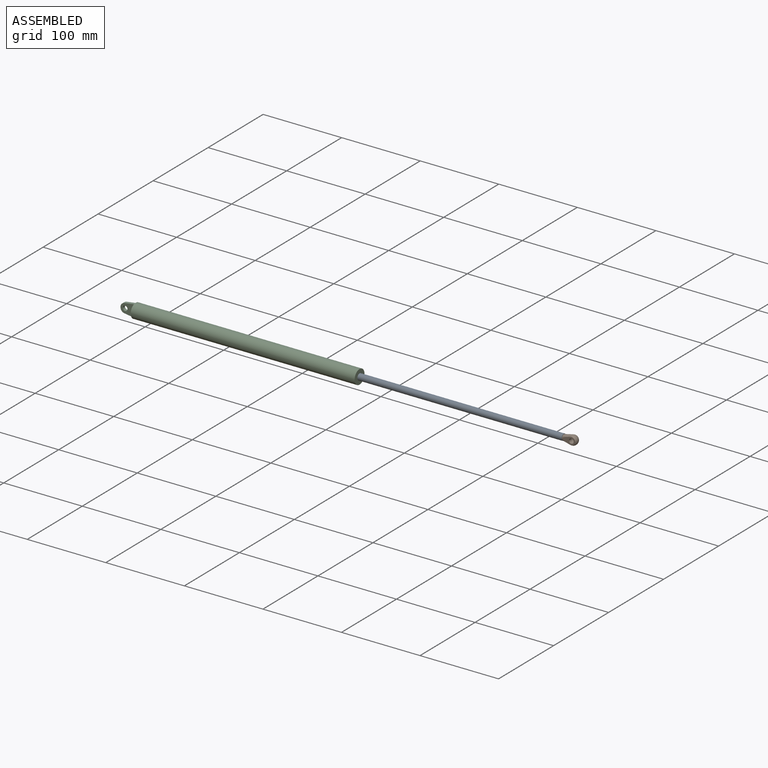
[diagram: assembled view]
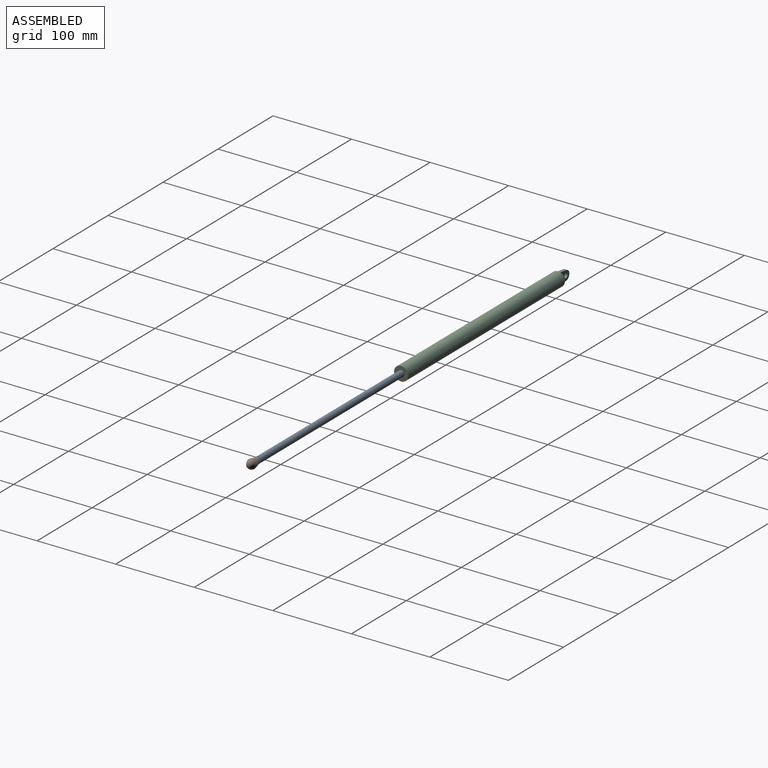
[diagram: assembled view, second angle]
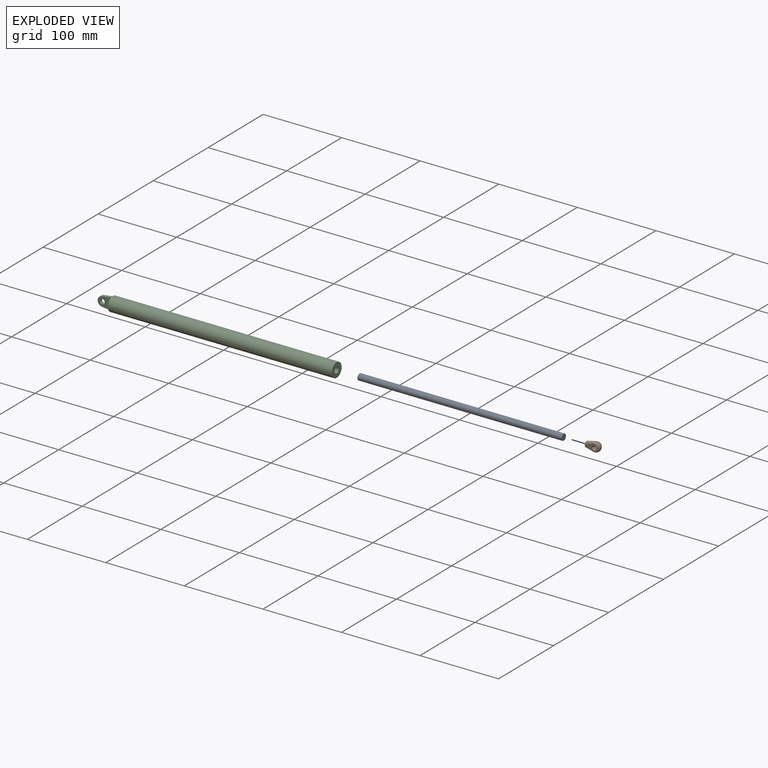
[diagram: exploded view]
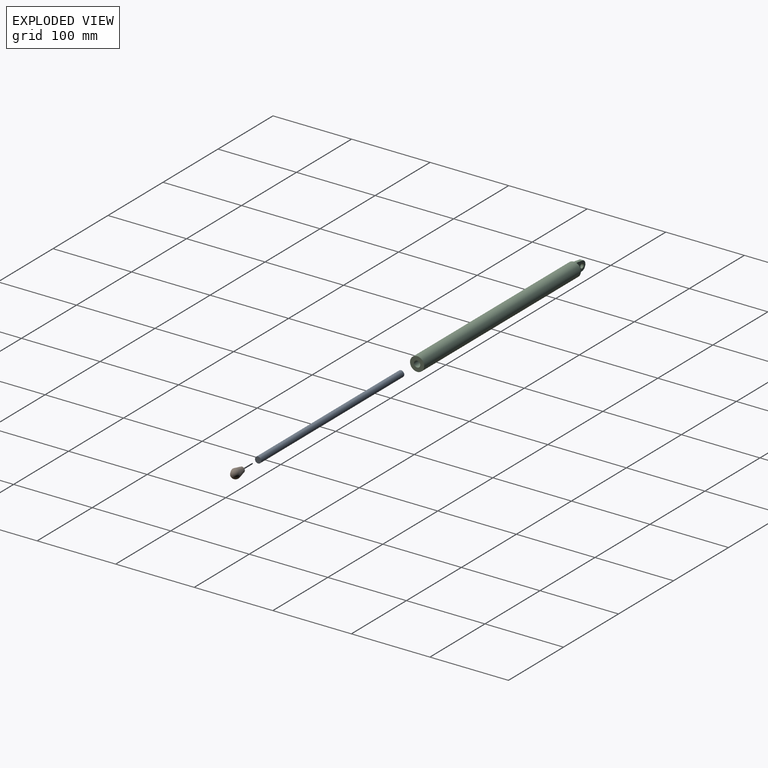
[diagram: exploded view, second angle]
ASSEMBLY  parts=3 mates=2
PART A: 3 faces, bbox 260x8x8 mm
  f0: cylinder r=4mm len=260mm, axis (-1,0,0), area 6534.5mm2, adj f1,f2
  f1: plane 8x8mm, normal (1,0,0), area 50.3mm2, adj f0
  f2: plane 8x8mm, normal (-1,0,0), area 50.3mm2, adj f0
PART B: 6 faces, bbox 12.2x12.2x18.2 mm
  f0: plane 7x7mm, normal (0,0,-1), area 38.5mm2, adj f1
  f1: cone r=3.5mm half-angle=12.4deg, axis (0,0,1), area 250.4mm2, adj f0,f2,f3
  f2: sphere r=6mm, area 213.3mm2, adj f1,f3
  f3: plane 17.08x9.95mm, normal (1,0,0), area 85mm2, adj f1,f2,f4
  f4: cylinder r=3mm len=8mm, axis (1,0,0), area 150.8mm2, adj f3,f5
  f5: plane 6x6mm, normal (1,0,0), area 28.3mm2, adj f4
PART C: 11 faces, bbox 303x18x18 mm
  f0: cylinder r=4mm len=280mm, axis (-1,0,0), area 7037.2mm2, adj f2,f3
  f1: cylinder r=9mm len=285mm, axis (-1,0,0), area 16116.4mm2, adj f2,f4
  f2: plane 18x18mm, normal (1,0,0), area 204.2mm2, adj f0,f1
  f3: plane 8x8mm, normal (1,0,0), area 50.3mm2, adj f0
  f4: plane 18x18mm, normal (-1,0,0), area 192.3mm2, adj f1,f6,f8,f9,f10
  f5: cylinder r=6mm len=11.88mm, axis (0,-1,0), area 68.6mm2, adj f6,f8,f9,f10
  f6: plane 12.85x4mm, normal (-0.14,0,0.99), area 51.9mm2, adj f4,f5,f9,f10
  f7: cylinder r=3mm len=6mm, axis (0,-1,0), area 75.4mm2, adj f9,f10
  f8: plane 12.85x4mm, normal (-0.14,0,-0.99), area 51.9mm2, adj f4,f5,f9,f10
  f9: plane 18x15.55mm, normal (0,1,0), area 194.3mm2, adj f4,f5,f6,f7,f8
  f10: plane 18x15.55mm, normal (0,-1,0), area 194.3mm2, adj f4,f5,f6,f7,f8
PLACE A t=(175.62,-3.81,-26.6)mm
PLACE B rot(axis=(-0.58,0.58,-0.58),120deg) t=(435.62,-3.81,-26.6)mm
PLACE C t=(-104.38,-3.81,-26.6)mm fixed
MATE slider C.f0 <-> A.f0  axis (-1,0,0) through (175.62,-3.81,-26.6)mm
MATE fastened B.f1 <-> A.f0  axis (-1,0,0) through (435.62,-3.81,-26.6)mm
